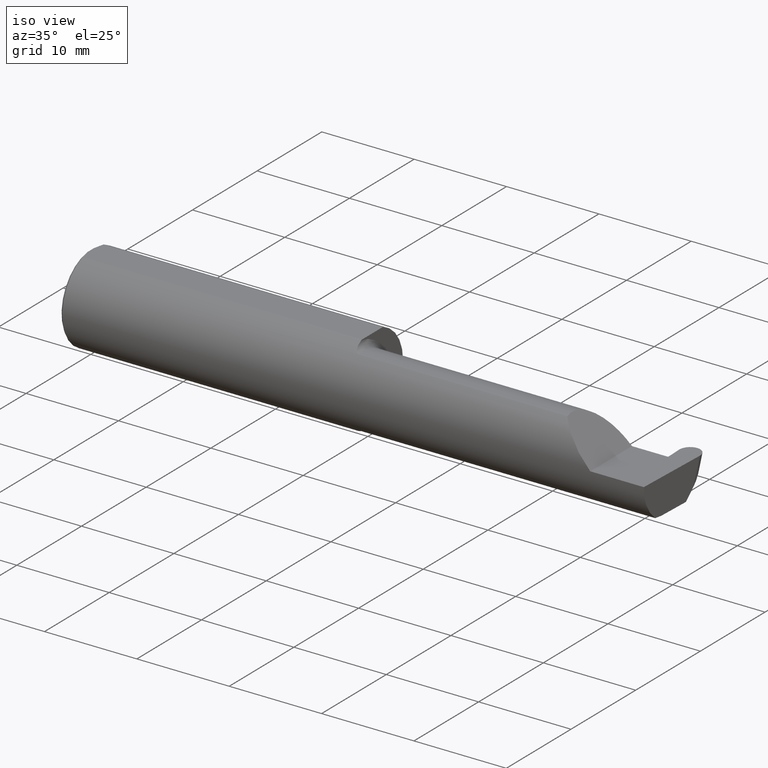
[diagram: clean part render]
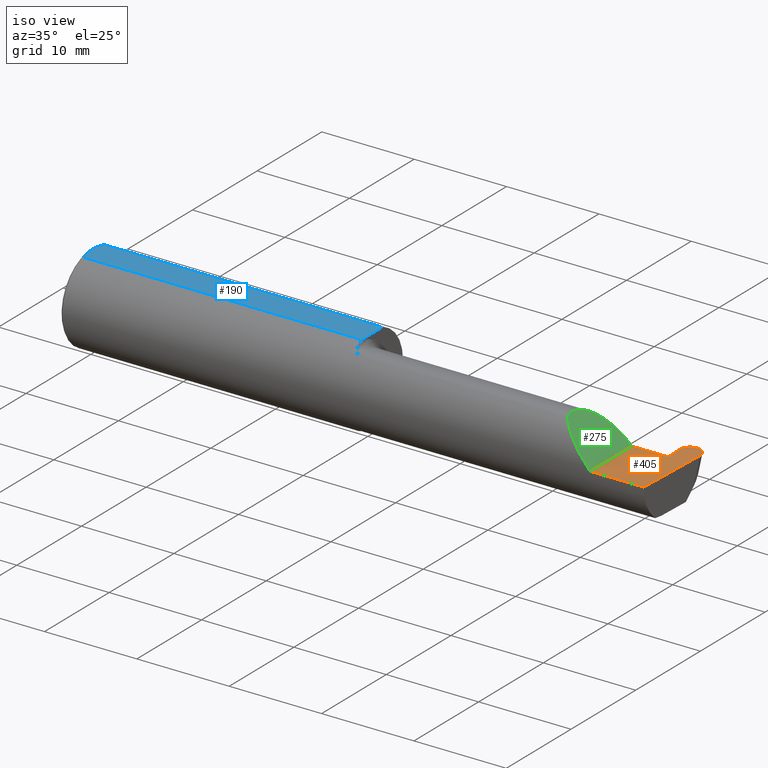
[diagram: same view with three faces highlighted in distinct colors, each labeled with its STEP entity id]
A machine part, iso view with three faces highlighted in distinct colors.
Their STEP definitions:

[orange] entity #405 — the highlighted planar face has unit normal (-0, 0, -1).
#11 = VERTEX_POINT ( 'NONE', #30 ) ;
#17 = VECTOR ( 'NONE', #204, 39.37007874015748143 ) ;
#25 = DIRECTION ( 'NONE',  ( -1.000000000000000000, 0.000000000000000000, 1.224646799147353947E-16 ) ) ;
#28 = ORIENTED_EDGE ( 'NONE', *, *, #199, .F. ) ;
#30 = CARTESIAN_POINT ( 'NONE',  ( 2.456309424548497322, 0.1846500000000000363, 0.000000000000000000 ) ) ;
#64 =( BOUNDED_CURVE ( )  B_SPLINE_CURVE ( 3, ( #625, #141, #678, #556 ),
 .UNSPECIFIED., .F., .F. ) 
 B_SPLINE_CURVE_WITH_KNOTS ( ( 4, 4 ),
 ( 1.627103621474502049, 3.225696776093220475 ),
 .UNSPECIFIED. ) 
 CURVE ( )  GEOMETRIC_REPRESENTATION_ITEM ( )  RATIONAL_B_SPLINE_CURVE ( ( 1.000000000000000000, 0.7981407609938095948, 0.7981407609938095948, 1.000000000000000000 ) ) 
 REPRESENTATION_ITEM ( '' )  );
#65 = EDGE_CURVE ( 'NONE', #490, #11, #64, .T. ) ;
#73 = CARTESIAN_POINT ( 'NONE',  ( 2.411899392914586659, 0.1370998259008695541, 0.000000000000000000 ) ) ;
#85 = LINE ( 'NONE', #360, #172 ) ;
#87 = CARTESIAN_POINT ( 'NONE',  ( 2.411899392914586659, 0.1370998259008695541, 0.000000000000000000 ) ) ;
#91 = ORIENTED_EDGE ( 'NONE', *, *, #374, .F. ) ;
#94 = EDGE_CURVE ( 'NONE', #490, #606, #621, .T. ) ;
#95 = VECTOR ( 'NONE', #424, 39.37007874015748143 ) ;
#100 = DIRECTION ( 'NONE',  ( 1.000000000000000000, 8.453855317547640226E-17, 0.000000000000000000 ) ) ;
#122 = VERTEX_POINT ( 'NONE', #73 ) ;
#140 = LINE ( 'NONE', #481, #95 ) ;
#141 = CARTESIAN_POINT ( 'NONE',  ( 2.500873303789769242, 0.1647912748130947458, 3.031548046095857169E-18 ) ) ;
#147 = CARTESIAN_POINT ( 'NONE',  ( 3.749399456654646757E-32, -0.1873499999999999610, 3.061616997868383634E-16 ) ) ;
#148 = EDGE_CURVE ( 'NONE', #175, #122, #258, .T. ) ;
#154 = ORIENTED_EDGE ( 'NONE', *, *, #216, .F. ) ;
#155 = VECTOR ( 'NONE', #567, 39.37007874015748854 ) ;
#172 = VECTOR ( 'NONE', #100, 39.37007874015748143 ) ;
#175 = VERTEX_POINT ( 'NONE', #693 ) ;
#199 = EDGE_CURVE ( 'NONE', #242, #435, #437, .T. ) ;
#203 = CARTESIAN_POINT ( 'NONE',  ( 2.260000000000000231, 0.06664999999999994540, 1.592040838891559588E-16 ) ) ;
#204 = DIRECTION ( 'NONE',  ( 1.000000000000000000, -0.000000000000000000, -0.000000000000000000 ) ) ;
#216 = EDGE_CURVE ( 'NONE', #435, #122, #530, .T. ) ;
#237 = FACE_OUTER_BOUND ( 'NONE', #630, .T. ) ;
#240 = DIRECTION ( 'NONE',  ( -1.224646799147353947E-16, 0.000000000000000000, -1.000000000000000000 ) ) ;
#242 = VERTEX_POINT ( 'NONE', #499 ) ;
#258 =( BOUNDED_CURVE ( )  B_SPLINE_CURVE ( 3, ( #537, #477, #264, #87 ),
 .UNSPECIFIED., .F., .F. ) 
 B_SPLINE_CURVE_WITH_KNOTS ( ( 4, 4 ),
 ( 3.057488531086357764, 4.656081685705083295 ),
 .UNSPECIFIED. ) 
 CURVE ( )  GEOMETRIC_REPRESENTATION_ITEM ( )  RATIONAL_B_SPLINE_CURVE ( ( 1.000000000000000000, 0.7981407609938078185, 0.7981407609938078185, 1.000000000000000000 ) ) 
 REPRESENTATION_ITEM ( '' )  );
#264 = CARTESIAN_POINT ( 'NONE',  ( 2.410932386210230760, 0.1647912748130948291, 1.110789957736176039E-17 ) ) ;
#295 = PLANE ( 'NONE',  #561 ) ;
#304 = CARTESIAN_POINT ( 'NONE',  ( 2.411832552795360574, 0.1390138764844879860, 0.000000000000000000 ) ) ;
#309 = ORIENTED_EDGE ( 'NONE', *, *, #94, .F. ) ;
#320 = ORIENTED_EDGE ( 'NONE', *, *, #568, .F. ) ;
#343 = CARTESIAN_POINT ( 'NONE',  ( 2.499906297085412898, 0.1370998259008695819, 0.000000000000000000 ) ) ;
#360 = CARTESIAN_POINT ( 'NONE',  ( 1.199999999999999956, 0.06664999999999984825, 1.592040838891559588E-16 ) ) ;
#364 = DIRECTION ( 'NONE',  ( -1.000000000000000000, -0.000000000000000000, -0.000000000000000000 ) ) ;
#368 = CARTESIAN_POINT ( 'NONE',  ( 2.260000000000000231, -0.1873499999999999888, 2.939152317953647352E-17 ) ) ;
#374 = EDGE_CURVE ( 'NONE', #175, #11, #663, .T. ) ;
#377 = DIRECTION ( 'NONE',  ( -0.03489949670249400948, 0.9993908270190959842, -0.000000000000000000 ) ) ;
#378 = ORIENTED_EDGE ( 'NONE', *, *, #65, .T. ) ;
#386 = VECTOR ( 'NONE', #377, 39.37007874015748143 ) ;
#393 = DIRECTION ( 'NONE',  ( 1.000000000000000000, -0.000000000000000000, -0.000000000000000000 ) ) ;
#402 = CARTESIAN_POINT ( 'NONE',  ( 2.499973137204639428, 0.1390138764844880415, 0.000000000000000000 ) ) ;
#405 = ADVANCED_FACE ( 'NONE', ( #237 ), #295, .F. ) ;
#424 = DIRECTION ( 'NONE',  ( -0.000000000000000000, 1.000000000000000000, -0.000000000000000000 ) ) ;
#435 = VERTEX_POINT ( 'NONE', #558 ) ;
#437 = LINE ( 'NONE', #579, #17 ) ;
#442 = CARTESIAN_POINT ( 'NONE',  ( -0.001039370078739994957, 0.1846500000000000363, 0.000000000000000000 ) ) ;
#476 = CARTESIAN_POINT ( 'NONE',  ( 2.488576259503493926, -0.1873499999999999888, 0.000000000000000000 ) ) ;
#477 = CARTESIAN_POINT ( 'NONE',  ( 2.429140065301251372, 0.1846500000000001473, 8.878101985489642774E-18 ) ) ;
#481 = CARTESIAN_POINT ( 'NONE',  ( 2.260000000000000231, -0.2500000000000000555, 2.939152317953647352E-17 ) ) ;
#483 = ORIENTED_EDGE ( 'NONE', *, *, #517, .F. ) ;
#490 = VERTEX_POINT ( 'NONE', #343 ) ;
#499 = CARTESIAN_POINT ( 'NONE',  ( 2.405238904245578624, 0.06664999999999991764, 0.000000000000000000 ) ) ;
#500 = ORIENTED_EDGE ( 'NONE', *, *, #540, .F. ) ;
#517 = EDGE_CURVE ( 'NONE', #606, #580, #619, .T. ) ;
#520 = VERTEX_POINT ( 'NONE', #203 ) ;
#530 = LINE ( 'NONE', #304, #386 ) ;
#532 = ORIENTED_EDGE ( 'NONE', *, *, #148, .T. ) ;
#537 = CARTESIAN_POINT ( 'NONE',  ( 2.455496265451502236, 0.1846500000000000363, 0.000000000000000000 ) ) ;
#540 = EDGE_CURVE ( 'NONE', #580, #520, #140, .T. ) ;
#555 = CARTESIAN_POINT ( 'NONE',  ( 2.500000000000000000, -0.2500000000000000555, 0.000000000000000000 ) ) ;
#556 = CARTESIAN_POINT ( 'NONE',  ( 2.456309424548497322, 0.1846500000000000363, 0.000000000000000000 ) ) ;
#558 = CARTESIAN_POINT ( 'NONE',  ( 2.414359555045604289, 0.06664999999999991764, 0.000000000000000000 ) ) ;
#561 = AXIS2_PLACEMENT_3D ( 'NONE', #555, #240, #25 ) ;
#567 = DIRECTION ( 'NONE',  ( -0.03489949670249319069, -0.9993908270190959842, 0.000000000000000000 ) ) ;
#568 = EDGE_CURVE ( 'NONE', #520, #242, #85, .T. ) ;
#579 = CARTESIAN_POINT ( 'NONE',  ( 2.414359555045604289, 0.06664999999999991764, 0.000000000000000000 ) ) ;
#580 = VERTEX_POINT ( 'NONE', #368 ) ;
#598 = VECTOR ( 'NONE', #364, 39.37007874015748143 ) ;
#606 = VERTEX_POINT ( 'NONE', #476 ) ;
#619 = LINE ( 'NONE', #147, #598 ) ;
#621 = LINE ( 'NONE', #402, #155 ) ;
#625 = CARTESIAN_POINT ( 'NONE',  ( 2.499906297085412898, 0.1370998259008695819, 0.000000000000000000 ) ) ;
#630 = EDGE_LOOP ( 'NONE', ( #91, #532, #154, #28, #320, #500, #483, #309, #378 ) ) ;
#663 = LINE ( 'NONE', #442, #689 ) ;
#678 = CARTESIAN_POINT ( 'NONE',  ( 2.482665624698748186, 0.1846499999999999808, 5.261345637967953601E-18 ) ) ;
#689 = VECTOR ( 'NONE', #393, 39.37007874015748143 ) ;
#693 = CARTESIAN_POINT ( 'NONE',  ( 2.455496265451502236, 0.1846500000000000363, 0.000000000000000000 ) ) ;

[blue] entity #190 — the highlighted planar face has unit normal (0, 0, 1).
#8 = CARTESIAN_POINT ( 'NONE',  ( 0.01000000000000013205, 0.06325108694718235836, 0.1763499999999999235 ) ) ;
#54 = CARTESIAN_POINT ( 'NONE',  ( 0.001616639753276021213, 0.03405189565400638246, 0.1763499999999999235 ) ) ;
#69 = LINE ( 'NONE', #351, #421 ) ;
#79 = ORIENTED_EDGE ( 'NONE', *, *, #349, .F. ) ;
#97 = CARTESIAN_POINT ( 'NONE',  ( 0.000000000000000000, -0.01880691362238934641, 0.1763499999999999235 ) ) ;
#98 = CARTESIAN_POINT ( 'NONE',  ( 2.876828993045917215, 0.1873499999999998500, 0.1763499999999999235 ) ) ;
#112 = B_SPLINE_CURVE_WITH_KNOTS ( 'NONE', 3,
 ( #644, #583, #533, #97 ),
 .UNSPECIFIED., .F., .F.,
 ( 4, 4 ),
 ( 0.009771445421851331775, 0.01092787937989104369 ),
 .UNSPECIFIED. ) ;
#113 = LINE ( 'NONE', #551, #335 ) ;
#145 = FACE_OUTER_BOUND ( 'NONE', #538, .T. ) ;
#159 = CARTESIAN_POINT ( 'NONE',  ( 0.000000000000000000, -0.01880691362238934641, 0.1763499999999999235 ) ) ;
#180 = CARTESIAN_POINT ( 'NONE',  ( 0.01000000000000013205, -0.06325108694718235836, 0.1763499999999999235 ) ) ;
#190 = ADVANCED_FACE ( 'NONE', ( #145 ), #215, .T. ) ;
#200 = LINE ( 'NONE', #536, #346 ) ;
#206 = VERTEX_POINT ( 'NONE', #585 ) ;
#215 = PLANE ( 'NONE',  #325 ) ;
#233 = ORIENTED_EDGE ( 'NONE', *, *, #542, .T. ) ;
#244 = EDGE_CURVE ( 'NONE', #259, #587, #642, .T. ) ;
#248 = LINE ( 'NONE', #410, #257 ) ;
#257 = VECTOR ( 'NONE', #298, 39.37007874015748143 ) ;
#259 = VERTEX_POINT ( 'NONE', #501 ) ;
#260 = CARTESIAN_POINT ( 'NONE',  ( 0.01000000000000013205, 0.06325108694718235836, 0.1763499999999999235 ) ) ;
#276 = CARTESIAN_POINT ( 'NONE',  ( 0.000000000000000000, 0.01880691362238934988, 0.1763499999999999235 ) ) ;
#279 = DIRECTION ( 'NONE',  ( -0.000000000000000000, 1.000000000000000000, -0.000000000000000000 ) ) ;
#283 = DIRECTION ( 'NONE',  ( 1.000000000000000000, 0.000000000000000000, 0.000000000000000000 ) ) ;
#298 = DIRECTION ( 'NONE',  ( -8.453855317547640226E-17, 1.000000000000000000, 0.000000000000000000 ) ) ;
#300 = ORIENTED_EDGE ( 'NONE', *, *, #244, .F. ) ;
#307 = DIRECTION ( 'NONE',  ( 0.000000000000000000, 0.000000000000000000, 1.000000000000000000 ) ) ;
#325 = AXIS2_PLACEMENT_3D ( 'NONE', #98, #307, #488 ) ;
#335 = VECTOR ( 'NONE', #279, 39.37007874015748143 ) ;
#346 = VECTOR ( 'NONE', #684, 39.37007874015748143 ) ;
#349 = EDGE_CURVE ( 'NONE', #666, #259, #113, .T. ) ;
#351 = CARTESIAN_POINT ( 'NONE',  ( 0.000000000000000000, -0.06325108694718235836, 0.1763499999999999235 ) ) ;
#358 = ORIENTED_EDGE ( 'NONE', *, *, #419, .T. ) ;
#410 = CARTESIAN_POINT ( 'NONE',  ( 1.199999999999999956, 0.1873499999999997112, 0.1763499999999999235 ) ) ;
#417 = EDGE_CURVE ( 'NONE', #430, #680, #69, .T. ) ;
#419 = EDGE_CURVE ( 'NONE', #680, #206, #248, .T. ) ;
#421 = VECTOR ( 'NONE', #283, 39.37007874015748143 ) ;
#430 = VERTEX_POINT ( 'NONE', #180 ) ;
#446 = ORIENTED_EDGE ( 'NONE', *, *, #626, .F. ) ;
#488 = DIRECTION ( 'NONE',  ( 1.000000000000000000, 0.000000000000000000, -0.000000000000000000 ) ) ;
#501 = CARTESIAN_POINT ( 'NONE',  ( 0.000000000000000000, 0.01880691362238934988, 0.1763499999999999235 ) ) ;
#533 = CARTESIAN_POINT ( 'NONE',  ( 0.001595548104417008695, -0.03385300050298640367, 0.1763499999999999235 ) ) ;
#536 = CARTESIAN_POINT ( 'NONE',  ( 0.000000000000000000, 0.06325108694718235836, 0.1763499999999999235 ) ) ;
#538 = EDGE_LOOP ( 'NONE', ( #569, #358, #233, #300, #79, #446 ) ) ;
#542 = EDGE_CURVE ( 'NONE', #206, #587, #200, .T. ) ;
#551 = CARTESIAN_POINT ( 'NONE',  ( 0.000000000000000000, 0.1873499999999998500, 0.1763499999999999235 ) ) ;
#553 = CARTESIAN_POINT ( 'NONE',  ( 0.005155213631852488369, 0.04890080824240059659, 0.1763499999999999235 ) ) ;
#569 = ORIENTED_EDGE ( 'NONE', *, *, #417, .T. ) ;
#583 = CARTESIAN_POINT ( 'NONE',  ( 0.005151108632379722968, -0.04888864921576022843, 0.1763499999999999235 ) ) ;
#585 = CARTESIAN_POINT ( 'NONE',  ( 1.199999999999999956, 0.06325108694718235836, 0.1763499999999999235 ) ) ;
#587 = VERTEX_POINT ( 'NONE', #260 ) ;
#593 = CARTESIAN_POINT ( 'NONE',  ( 1.199999999999999956, -0.06325108694718287183, 0.1763499999999999235 ) ) ;
#626 = EDGE_CURVE ( 'NONE', #430, #666, #112, .T. ) ;
#642 = B_SPLINE_CURVE_WITH_KNOTS ( 'NONE', 3,
 ( #276, #54, #553, #8 ),
 .UNSPECIFIED., .F., .F.,
 ( 4, 4 ),
 ( 0.01188664626022242071, 0.01304646959483746725 ),
 .UNSPECIFIED. ) ;
#644 = CARTESIAN_POINT ( 'NONE',  ( 0.01000000000000013205, -0.06325108694718235836, 0.1763499999999999235 ) ) ;
#666 = VERTEX_POINT ( 'NONE', #159 ) ;
#680 = VERTEX_POINT ( 'NONE', #593 ) ;
#684 = DIRECTION ( 'NONE',  ( -1.000000000000000000, -0.000000000000000000, -0.000000000000000000 ) ) ;

[green] entity #275 — the highlighted planar face has unit normal (-0.7071, 0, -0.7071).
#12 = DIRECTION ( 'NONE',  ( -0.7071067811865509034, 0.000000000000000000, 0.7071067811865440200 ) ) ;
#19 = EDGE_LOOP ( 'NONE', ( #42, #381, #375 ) ) ;
#22 = CARTESIAN_POINT ( 'NONE',  ( 2.113883229301068756, -0.1172600179964011363, 0.1461167706989299764 ) ) ;
#26 = CARTESIAN_POINT ( 'NONE',  ( 2.260000000000000231, -0.1873499999999999888, 2.939152317953647352E-17 ) ) ;
#34 = EDGE_CURVE ( 'NONE', #580, #468, #623, .T. ) ;
#42 = ORIENTED_EDGE ( 'NONE', *, *, #592, .F. ) ;
#95 = VECTOR ( 'NONE', #424, 39.37007874015748143 ) ;
#116 = PLANE ( 'NONE',  #119 ) ;
#119 = AXIS2_PLACEMENT_3D ( 'NONE', #492, #541, #12 ) ;
#128 = CARTESIAN_POINT ( 'NONE',  ( 2.150065971957465294, -0.1623470442677543146, 0.1099340280425333688 ) ) ;
#140 = LINE ( 'NONE', #481, #95 ) ;
#189 = CARTESIAN_POINT ( 'NONE',  ( 2.202189699843947857, -0.1873500000000000165, 0.05781030015605082700 ) ) ;
#203 = CARTESIAN_POINT ( 'NONE',  ( 2.260000000000000231, 0.06664999999999994540, 1.592040838891559588E-16 ) ) ;
#245 = CARTESIAN_POINT ( 'NONE',  ( 2.113883229301068756, -0.1172600179964011363, 0.1461167706989299764 ) ) ;
#275 = ADVANCED_FACE ( 'NONE', ( #327 ), #116, .F. ) ;
#306 = CARTESIAN_POINT ( 'NONE',  ( 2.260000000000000231, 0.06664999999999994540, 1.592040838891559588E-16 ) ) ;
#310 = CARTESIAN_POINT ( 'NONE',  ( 2.155331797197862720, 0.06664999999999991764, 0.1046682028021363176 ) ) ;
#317 = CARTESIAN_POINT ( 'NONE',  ( 2.113883229301068756, -0.1172600179964011363, 0.1461167706989299764 ) ) ;
#327 = FACE_OUTER_BOUND ( 'NONE', #19, .T. ) ;
#368 = CARTESIAN_POINT ( 'NONE',  ( 2.260000000000000231, -0.1873499999999999888, 2.939152317953647352E-17 ) ) ;
#375 = ORIENTED_EDGE ( 'NONE', *, *, #540, .T. ) ;
#381 = ORIENTED_EDGE ( 'NONE', *, *, #34, .F. ) ;
#424 = DIRECTION ( 'NONE',  ( -0.000000000000000000, 1.000000000000000000, -0.000000000000000000 ) ) ;
#468 = VERTEX_POINT ( 'NONE', #22 ) ;
#481 = CARTESIAN_POINT ( 'NONE',  ( 2.260000000000000231, -0.2500000000000000555, 2.939152317953647352E-17 ) ) ;
#492 = CARTESIAN_POINT ( 'NONE',  ( 2.260000000000000231, -0.2500000000000000555, 2.939152317953647352E-17 ) ) ;
#520 = VERTEX_POINT ( 'NONE', #203 ) ;
#540 = EDGE_CURVE ( 'NONE', #580, #520, #140, .T. ) ;
#541 = DIRECTION ( 'NONE',  ( -0.7071067811865441310, 0.000000000000000000, -0.7071067811865510144 ) ) ;
#580 = VERTEX_POINT ( 'NONE', #368 ) ;
#592 = EDGE_CURVE ( 'NONE', #468, #520, #697, .T. ) ;
#623 =( BOUNDED_CURVE ( )  B_SPLINE_CURVE ( 3, ( #26, #189, #128, #245 ),
 .UNSPECIFIED., .F., .F. ) 
 B_SPLINE_CURVE_WITH_KNOTS ( ( 4, 4 ),
 ( 4.712388980384688786, 5.606916381293133966 ),
 .UNSPECIFIED. ) 
 CURVE ( )  GEOMETRIC_REPRESENTATION_ITEM ( )  RATIONAL_B_SPLINE_CURVE ( ( 1.000000000000000000, 0.9344226172588806500, 0.9344226172588806500, 1.000000000000000000 ) ) 
 REPRESENTATION_ITEM ( '' )  );
#648 = CARTESIAN_POINT ( 'NONE',  ( 2.090221225029925467, -0.01530148607434202168, 0.1697787749700729043 ) ) ;
#697 =( BOUNDED_CURVE ( )  B_SPLINE_CURVE ( 3, ( #317, #648, #310, #306 ),
 .UNSPECIFIED., .F., .T. ) 
 B_SPLINE_CURVE_WITH_KNOTS ( ( 4, 4 ),
 ( 6.055147272130138703, 7.853981633974482790 ),
 .UNSPECIFIED. ) 
 CURVE ( )  GEOMETRIC_REPRESENTATION_ITEM ( )  RATIONAL_B_SPLINE_CURVE ( ( 1.000000000000000000, 0.7480442670255259552, 0.7480442670255259552, 1.000000000000000000 ) ) 
 REPRESENTATION_ITEM ( '' )  );